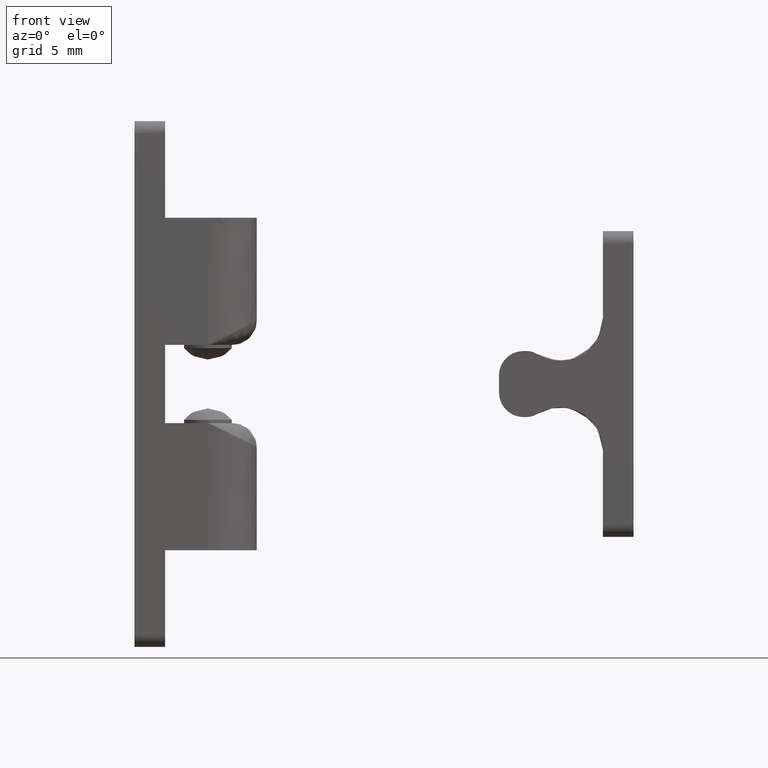
[diagram: clean part render]
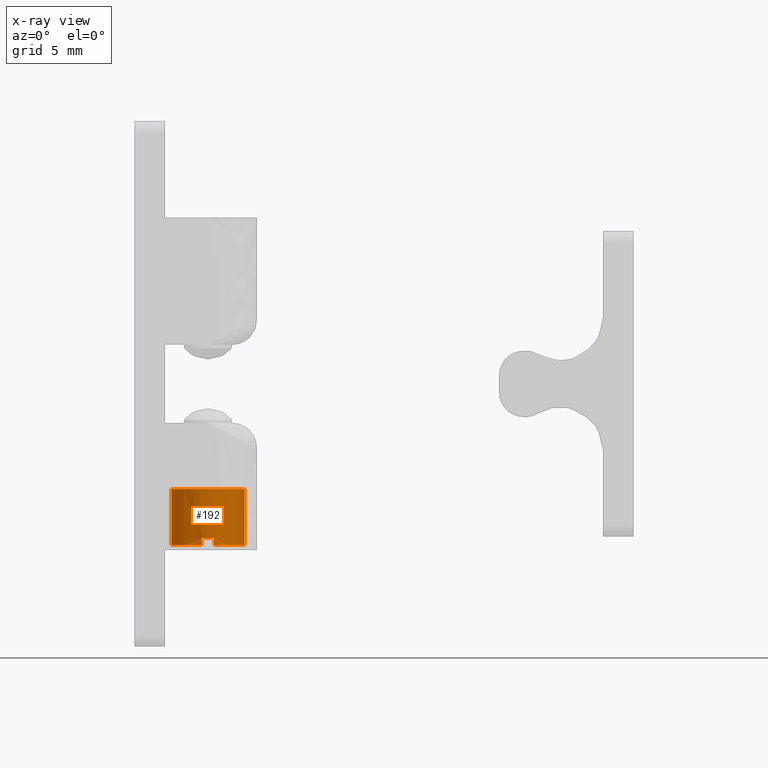
[diagram: x-ray — body ghosted, one internal face saturated and labeled with its STEP entity id]
A machine part, front view, then the same camera in x-ray: the body is ghosted and one INTERNAL B-rep face — a face not visible from any outside direction — is saturated and labeled: STEP entity #192.
In plain terms, the highlighted face is a freeform B-spline surface patch.
Its self-contained STEP definition (entity closure, byte-faithful):
#44=CARTESIAN_POINT('',(-8.484999999999998,2.267357029585615,4.035542797516655));
#45=CARTESIAN_POINT('',(-8.484999999999998,0.302899827102271,1.768185767931039));
#46=CARTESIAN_POINT('',(-8.484999999999998,-1.964457202483345,3.732642970414385));
#47=CARTESIAN_POINT('',(-8.484999999999998,-4.231814232068961,5.697100172897731));
#48=CARTESIAN_POINT('',(-8.484999999999998,-2.267357029585615,7.964457202483345));
#49=CARTESIAN_POINT('',(-8.484999999999998,-0.302899827102271,10.231814232068960));
#50=CARTESIAN_POINT('',(-8.484999999999998,1.964457202483345,8.267357029585615));
#51=CARTESIAN_POINT('',(-13.317875000000001,2.267357029585615,4.035542797516655));
#52=CARTESIAN_POINT('',(-13.317875000000001,0.302899827102271,1.768185767931039));
#53=CARTESIAN_POINT('',(-13.317875000000001,-1.964457202483345,3.732642970414385));
#54=CARTESIAN_POINT('',(-13.317875000000001,-4.231814232068961,5.697100172897731));
#55=CARTESIAN_POINT('',(-13.317875000000001,-2.267357029585615,7.964457202483345));
#56=CARTESIAN_POINT('',(-13.317875000000001,-0.302899827102271,10.231814232068960));
#57=CARTESIAN_POINT('',(-13.317875000000001,1.964457202483345,8.267357029585615));
#65=(BOUNDED_SURFACE()B_SPLINE_SURFACE(2,1,((#44,#51),(#45,#52),(#46,#53),(#47,#54),(#48,#55),(#49,#56),(#50,#57)),.UNSPECIFIED.,.F.,.F.,.U.)B_SPLINE_SURFACE_WITH_KNOTS((3,2,2,3),(2,2),(0.0,4.970562748477140,9.941125496954280,14.911688245431421),(0.0,4.832875000000003),.UNSPECIFIED.)GEOMETRIC_REPRESENTATION_ITEM()RATIONAL_B_SPLINE_SURFACE(((1.0,1.0),(0.707106781186548,0.707106781186548),(1.0,1.0),(0.707106781186548,0.707106781186548),(1.0,1.0),(0.707106781186548,0.707106781186548),(1.0,1.0)))REPRESENTATION_ITEM('')SURFACE());
#66=CARTESIAN_POINT('',(-8.599999999999969,2.267357659813444,4.035543524919838));
#67=VERTEX_POINT('',#66);
#68=CARTESIAN_POINT('',(-8.600000000000000,0.0,3.0));
#69=VERTEX_POINT('',#68);
#70=CARTESIAN_POINT('',(-8.599999999999969,2.267357659813444,4.035543524919838));
#71=CARTESIAN_POINT('',(-8.599999999999998,1.370155202472440,3.0));
#72=CARTESIAN_POINT('',(-8.600000000000000,0.0,3.0));
#80=(BOUNDED_CURVE()B_SPLINE_CURVE(2,(#70,#71,#72),.UNSPECIFIED.,.F.,.U.)B_SPLINE_CURVE_WITH_KNOTS((3,3),(0.864213591764938,1.0),.UNSPECIFIED.)CURVE()GEOMETRIC_REPRESENTATION_ITEM()RATIONAL_B_SPLINE_CURVE((0.854643858783272,0.840916327283661,1.0))REPRESENTATION_ITEM(''));
#81=EDGE_CURVE('',#67,#69,#80,.T.);
#82=ORIENTED_EDGE('',*,*,#81,.T.);
#83=CARTESIAN_POINT('',(-8.600000000000000,0.0,9.000000000000002));
#84=VERTEX_POINT('',#83);
#85=CARTESIAN_POINT('',(-8.600000000000000,0.0,3.0));
#86=CARTESIAN_POINT('',(-8.600000000000000,-3.0,3.0));
#87=CARTESIAN_POINT('',(-8.600000000000000,-3.0,6.0));
#88=CARTESIAN_POINT('',(-8.600000000000000,-3.0,9.000000000000002));
#89=CARTESIAN_POINT('',(-8.600000000000000,0.0,9.000000000000002));
#97=(BOUNDED_CURVE()B_SPLINE_CURVE(2,(#85,#86,#87,#88,#89),.UNSPECIFIED.,.F.,.U.)B_SPLINE_CURVE_WITH_KNOTS((3,2,3),(0.0,0.250000000000000,0.500000000000000),.UNSPECIFIED.)CURVE()GEOMETRIC_REPRESENTATION_ITEM()RATIONAL_B_SPLINE_CURVE((1.0,0.707106781186548,1.0,0.707106781186548,1.0))REPRESENTATION_ITEM(''));
#98=EDGE_CURVE('',#69,#84,#97,.T.);
#99=ORIENTED_EDGE('',*,*,#98,.T.);
#100=CARTESIAN_POINT('',(-8.600000000000007,1.964456485560715,8.267357650733015));
#101=VERTEX_POINT('',#100);
#102=CARTESIAN_POINT('',(-8.600000000000000,0.0,9.000000000000002));
#103=CARTESIAN_POINT('',(-8.599999999999998,1.118846868149415,9.0));
#104=CARTESIAN_POINT('',(-8.600000000000007,1.964456485560715,8.267357650733015));
#112=(BOUNDED_CURVE()B_SPLINE_CURVE(2,(#102,#103,#104),.UNSPECIFIED.,.F.,.U.)B_SPLINE_CURVE_WITH_KNOTS((3,3),(0.500000000000000,0.614213593161643),.UNSPECIFIED.)CURVE()GEOMETRIC_REPRESENTATION_ITEM()RATIONAL_B_SPLINE_CURVE((1.0,0.866190452266545,0.854643858500868))REPRESENTATION_ITEM(''));
#113=EDGE_CURVE('',#84,#101,#112,.T.);
#114=ORIENTED_EDGE('',*,*,#113,.T.);
#115=CARTESIAN_POINT('',(-13.199999999999999,1.964457371057740,8.267356883531321));
#116=VERTEX_POINT('',#115);
#117=CARTESIAN_POINT('',(-8.600000000000007,1.964456485560715,8.267357650733015));
#118=CARTESIAN_POINT('',(-13.199999999999999,1.964457371057740,8.267356883531321));
#119=QUASI_UNIFORM_CURVE('',1,(#117,#118),.UNSPECIFIED.,.F.,.U.);
#120=EDGE_CURVE('',#101,#116,#119,.T.);
#121=ORIENTED_EDGE('',*,*,#120,.T.);
#122=CARTESIAN_POINT('',(-13.199999999999999,-2.958039891549805,6.500000000000000));
#123=VERTEX_POINT('',#122);
#124=CARTESIAN_POINT('',(-13.199999999999999,1.964457371057740,8.267356883531322));
#125=CARTESIAN_POINT('',(-13.200000000000006,1.118848202736167,9.000000000000002));
#126=CARTESIAN_POINT('',(-13.199999999999999,0.0,9.000000000000002));
#127=CARTESIAN_POINT('',(-13.200000000000006,-2.535462764185550,9.000000000000002));
#128=CARTESIAN_POINT('',(-13.199999999999999,-2.958039891549808,6.500000000000000));
#136=(BOUNDED_CURVE()B_SPLINE_CURVE(2,(#124,#125,#126,#127,#128),.UNSPECIFIED.,.F.,.U.)B_SPLINE_CURVE_WITH_KNOTS((3,2,3),(0.245809379727690,0.500000000000000,1.0),.UNSPECIFIED.)CURVE()GEOMETRIC_REPRESENTATION_ITEM()RATIONAL_B_SPLINE_CURVE((0.881914496994308,0.879901345570592,1.0,0.763762615825973,1.0))REPRESENTATION_ITEM(''));
#137=EDGE_CURVE('',#116,#123,#136,.T.);
#138=ORIENTED_EDGE('',*,*,#137,.T.);
#139=CARTESIAN_POINT('',(-12.600000000000000,-2.958039891549805,6.500000000000000));
#140=VERTEX_POINT('',#139);
#141=CARTESIAN_POINT('',(-12.600000000000000,-2.958039891549805,6.500000000000000));
#142=CARTESIAN_POINT('',(-13.199999999999999,-2.958039891549805,6.500000000000000));
#143=QUASI_UNIFORM_CURVE('',1,(#141,#142),.UNSPECIFIED.,.F.,.U.);
#144=EDGE_CURVE('',#140,#123,#143,.T.);
#145=ORIENTED_EDGE('',*,*,#144,.F.);
#146=CARTESIAN_POINT('',(-12.600000000000000,-2.958040000000000,5.500000000000000));
#147=VERTEX_POINT('',#146);
#148=CARTESIAN_POINT('',(-12.600000000000000,-2.958040000000000,5.500000000000000));
#149=CARTESIAN_POINT('',(-12.600000000000005,-3.042555315473371,6.000000009165715));
#150=CARTESIAN_POINT('',(-12.600000000000000,-2.958039891549808,6.500000000000002));
#158=(BOUNDED_CURVE()B_SPLINE_CURVE(2,(#148,#149,#150),.UNSPECIFIED.,.F.,.U.)CURVE()GEOMETRIC_REPRESENTATION_ITEM()QUASI_UNIFORM_CURVE()RATIONAL_B_SPLINE_CURVE((1.0,0.986013297685354,1.0))REPRESENTATION_ITEM(''));
#159=EDGE_CURVE('',#147,#140,#158,.T.);
#160=ORIENTED_EDGE('',*,*,#159,.F.);
#161=CARTESIAN_POINT('',(-13.199999999999999,-2.958040000000000,5.500000000000000));
#162=VERTEX_POINT('',#161);
#163=CARTESIAN_POINT('',(-12.600000000000000,-2.958040000000000,5.500000000000000));
#164=CARTESIAN_POINT('',(-13.199999999999999,-2.958040000000000,5.500000000000000));
#165=QUASI_UNIFORM_CURVE('',1,(#163,#164),.UNSPECIFIED.,.F.,.U.);
#166=EDGE_CURVE('',#147,#162,#165,.T.);
#167=ORIENTED_EDGE('',*,*,#166,.T.);
#168=CARTESIAN_POINT('',(-13.199999999999999,2.267357627960517,4.035543488155459));
#169=VERTEX_POINT('',#168);
#170=CARTESIAN_POINT('',(-13.199999999999999,-2.958040000000000,5.500000000000000));
#171=CARTESIAN_POINT('',(-13.200000000000001,-2.535462780969508,3.000000007638096));
#172=CARTESIAN_POINT('',(-13.199999999999999,-9.037516E-009,3.0));
#173=CARTESIAN_POINT('',(-13.200000000000003,1.370155140105650,2.999999995872400));
#174=CARTESIAN_POINT('',(-13.199999999999999,2.267357627960517,4.035543488155460));
#182=(BOUNDED_CURVE()B_SPLINE_CURVE(2,(#170,#171,#172,#173,#174),.UNSPECIFIED.,.F.,.U.)B_SPLINE_CURVE_WITH_KNOTS((3,2,3),(0.0,0.500000000000000,0.803108394359053),.UNSPECIFIED.)CURVE()GEOMETRIC_REPRESENTATION_ITEM()RATIONAL_B_SPLINE_CURVE((1.0,0.763762614853692,1.0,0.856788931001442,0.887211770717270))REPRESENTATION_ITEM(''));
#183=EDGE_CURVE('',#162,#169,#182,.T.);
#184=ORIENTED_EDGE('',*,*,#183,.T.);
#185=CARTESIAN_POINT('',(-8.599999999999969,2.267357659813444,4.035543524919838));
#186=CARTESIAN_POINT('',(-13.199999999999999,2.267357627960517,4.035543488155459));
#187=QUASI_UNIFORM_CURVE('',1,(#185,#186),.UNSPECIFIED.,.F.,.U.);
#188=EDGE_CURVE('',#67,#169,#187,.T.);
#189=ORIENTED_EDGE('',*,*,#188,.F.);
#190=EDGE_LOOP('',(#82,#99,#114,#121,#138,#145,#160,#167,#184,#189));
#191=FACE_OUTER_BOUND('',#190,.T.);
#192=ADVANCED_FACE('',(#191),#65,.T.);